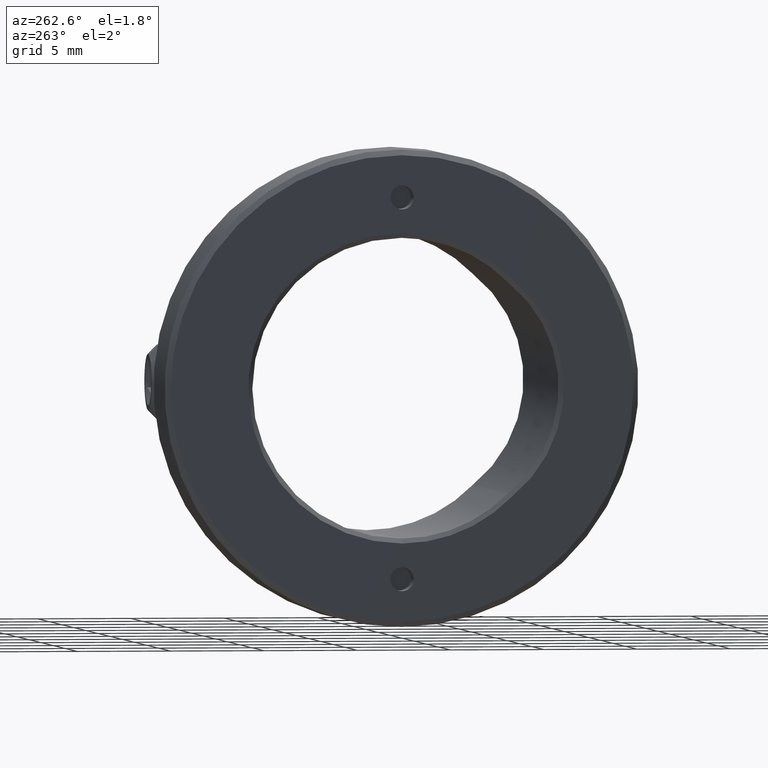
[diagram: clean part render]
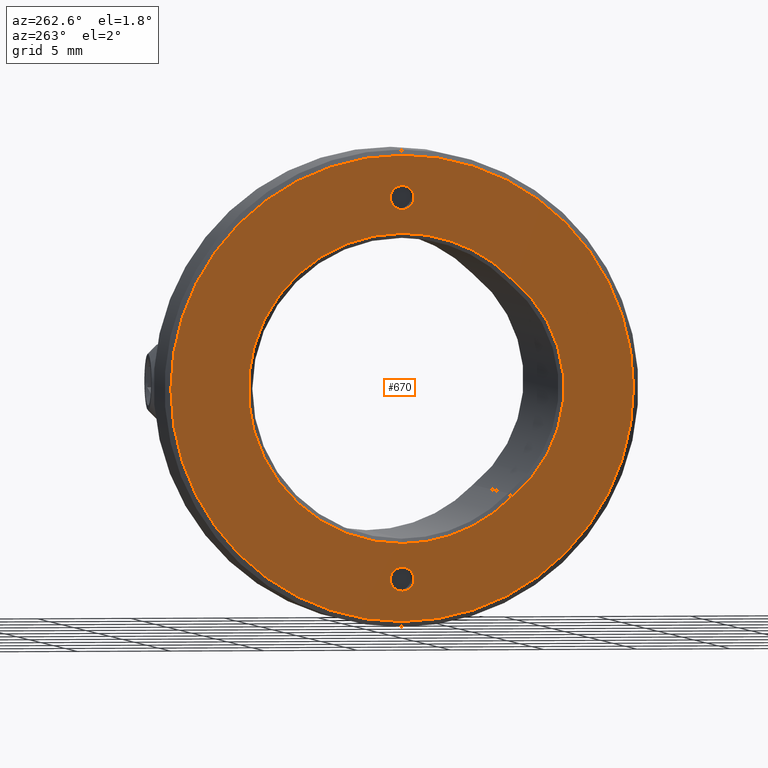
[diagram: same view with one face highlighted and labeled with its STEP entity id]
A machine part, auxiliary view. The second image highlights one B-rep face of the part: STEP entity #670.
In plain terms, the highlighted planar face has unit normal (1, 0, 0).
Its self-contained STEP definition (entity closure, byte-faithful):
#46 = EDGE_CURVE ( 'NONE', #3150, #1110, #4179, .T. ) ;
#50 = CIRCLE ( 'NONE', #2549, 12.40000000000000213 ) ;
#100 = CARTESIAN_POINT ( 'NONE',  ( -0.000000000000000000, -1.243016501134563686E-15, -10.15000000000000036 ) ) ;
#111 = VERTEX_POINT ( 'NONE', #472 ) ;
#135 = ORIENTED_EDGE ( 'NONE', *, *, #826, .F. ) ;
#167 = PLANE ( 'NONE',  #515 ) ;
#190 = DIRECTION ( 'NONE',  ( 0.000000000000000000, 0.000000000000000000, -1.000000000000000000 ) ) ;
#359 = CIRCLE ( 'NONE', #745, 0.6350000000000001199 ) ;
#394 = ORIENTED_EDGE ( 'NONE', *, *, #1951, .T. ) ;
#439 = CIRCLE ( 'NONE', #3182, 0.6350000000000001199 ) ;
#472 = CARTESIAN_POINT ( 'NONE',  ( 0.000000000000000000, -5.872204724409455956, -5.794800399895002840 ) ) ;
#477 = ORIENTED_EDGE ( 'NONE', *, *, #2613, .T. ) ;
#487 = CARTESIAN_POINT ( 'NONE',  ( 0.000000000000000000, -1.243016501134563686E-15, 10.15000000000000036 ) ) ;
#504 = DIRECTION ( 'NONE',  ( -1.000000000000000000, 0.000000000000000000, 0.000000000000000000 ) ) ;
#512 = DIRECTION ( 'NONE',  ( 0.000000000000000000, 0.000000000000000000, -1.000000000000000000 ) ) ;
#514 = DIRECTION ( 'NONE',  ( 1.000000000000000000, 0.000000000000000000, 0.000000000000000000 ) ) ;
#515 = AXIS2_PLACEMENT_3D ( 'NONE', #1690, #1252, #190 ) ;
#518 = CIRCLE ( 'NONE', #3251, 0.6350000000000001199 ) ;
#543 = DIRECTION ( 'NONE',  ( 0.000000000000000000, 0.000000000000000000, -1.000000000000000000 ) ) ;
#662 = CIRCLE ( 'NONE', #1282, 8.250000000000000000 ) ;
#670 = ADVANCED_FACE ( 'NONE', ( #1299, #802, #1987, #2285 ), #167, .F. ) ;
#734 = DIRECTION ( 'NONE',  ( 1.000000000000000000, 0.000000000000000000, 0.000000000000000000 ) ) ;
#736 = ORIENTED_EDGE ( 'NONE', *, *, #2443, .F. ) ;
#745 = AXIS2_PLACEMENT_3D ( 'NONE', #4063, #3630, #4384 ) ;
#757 = VERTEX_POINT ( 'NONE', #4653 ) ;
#780 = CARTESIAN_POINT ( 'NONE',  ( 0.000000000000000000, 0.000000000000000000, -12.40000000000000213 ) ) ;
#802 = FACE_BOUND ( 'NONE', #1149, .T. ) ;
#826 = EDGE_CURVE ( 'NONE', #2100, #3494, #1204, .T. ) ;
#961 = EDGE_LOOP ( 'NONE', ( #2169, #394 ) ) ;
#1013 = ORIENTED_EDGE ( 'NONE', *, *, #4169, .F. ) ;
#1110 = VERTEX_POINT ( 'NONE', #1904 ) ;
#1149 = EDGE_LOOP ( 'NONE', ( #1013, #2240 ) ) ;
#1204 = CIRCLE ( 'NONE', #3944, 0.6350000000000001199 ) ;
#1226 = DIRECTION ( 'NONE',  ( 0.000000000000000000, 0.000000000000000000, 1.000000000000000000 ) ) ;
#1243 = EDGE_LOOP ( 'NONE', ( #477, #1792, #1705, #2501 ) ) ;
#1252 = DIRECTION ( 'NONE',  ( 1.000000000000000000, 0.000000000000000000, 0.000000000000000000 ) ) ;
#1265 = CARTESIAN_POINT ( 'NONE',  ( 0.000000000000000000, -5.872204724409448851, 5.794800399895009058 ) ) ;
#1282 = AXIS2_PLACEMENT_3D ( 'NONE', #3874, #2378, #1578 ) ;
#1299 = FACE_BOUND ( 'NONE', #3088, .T. ) ;
#1344 = CARTESIAN_POINT ( 'NONE',  ( 0.000000000000000000, -1.270000000000000018, 1.555301434917138581E-16 ) ) ;
#1423 = CARTESIAN_POINT ( 'NONE',  ( 0.000000000000000000, -1.243016501134563686E-15, -9.515000000000000568 ) ) ;
#1446 = DIRECTION ( 'NONE',  ( 0.000000000000000000, 0.000000000000000000, -1.000000000000000000 ) ) ;
#1495 = EDGE_CURVE ( 'NONE', #4318, #3046, #662, .T. ) ;
#1550 = CARTESIAN_POINT ( 'NONE',  ( 0.000000000000000000, 0.000000000000000000, 0.000000000000000000 ) ) ;
#1578 = DIRECTION ( 'NONE',  ( 0.000000000000000000, 0.000000000000000000, -1.000000000000000000 ) ) ;
#1648 = EDGE_CURVE ( 'NONE', #757, #3699, #439, .T. ) ;
#1690 = CARTESIAN_POINT ( 'NONE',  ( 0.000000000000000000, 0.000000000000000000, 0.000000000000000000 ) ) ;
#1705 = ORIENTED_EDGE ( 'NONE', *, *, #4024, .T. ) ;
#1792 = ORIENTED_EDGE ( 'NONE', *, *, #1495, .T. ) ;
#1877 = CARTESIAN_POINT ( 'NONE',  ( 0.000000000000000000, -1.243016501134563686E-15, 10.78500000000000192 ) ) ;
#1904 = CARTESIAN_POINT ( 'NONE',  ( 0.000000000000000000, 1.536931732929928397E-15, 12.40000000000000213 ) ) ;
#1907 = CIRCLE ( 'NONE', #3101, 7.400000000000000355 ) ;
#1951 = EDGE_CURVE ( 'NONE', #1110, #3150, #50, .T. ) ;
#1987 = FACE_BOUND ( 'NONE', #1243, .T. ) ;
#2100 = VERTEX_POINT ( 'NONE', #3842 ) ;
#2169 = ORIENTED_EDGE ( 'NONE', *, *, #46, .T. ) ;
#2214 = CIRCLE ( 'NONE', #4098, 8.250000000000000000 ) ;
#2240 = ORIENTED_EDGE ( 'NONE', *, *, #1648, .F. ) ;
#2285 = FACE_OUTER_BOUND ( 'NONE', #961, .T. ) ;
#2378 = DIRECTION ( 'NONE',  ( 1.000000000000000000, 0.000000000000000000, 0.000000000000000000 ) ) ;
#2416 = DIRECTION ( 'NONE',  ( -1.000000000000000000, 0.000000000000000000, 0.000000000000000000 ) ) ;
#2443 = EDGE_CURVE ( 'NONE', #3494, #2100, #359, .T. ) ;
#2491 = DIRECTION ( 'NONE',  ( 0.000000000000000000, 0.000000000000000000, -1.000000000000000000 ) ) ;
#2501 = ORIENTED_EDGE ( 'NONE', *, *, #4620, .T. ) ;
#2549 = AXIS2_PLACEMENT_3D ( 'NONE', #3327, #4802, #1446 ) ;
#2569 = CARTESIAN_POINT ( 'NONE',  ( 0.000000000000000000, 0.000000000000000000, 8.250000000000000000 ) ) ;
#2613 = EDGE_CURVE ( 'NONE', #111, #4318, #2947, .T. ) ;
#2695 = DIRECTION ( 'NONE',  ( -1.000000000000000000, -0.000000000000000000, -0.000000000000000000 ) ) ;
#2770 = CARTESIAN_POINT ( 'NONE',  ( 0.000000000000000000, 0.000000000000000000, 0.000000000000000000 ) ) ;
#2947 = CIRCLE ( 'NONE', #3261, 8.250000000000000000 ) ;
#3046 = VERTEX_POINT ( 'NONE', #2569 ) ;
#3088 = EDGE_LOOP ( 'NONE', ( #736, #135 ) ) ;
#3101 = AXIS2_PLACEMENT_3D ( 'NONE', #1344, #3250, #2491 ) ;
#3134 = CARTESIAN_POINT ( 'NONE',  ( 0.000000000000000000, 0.000000000000000000, 0.000000000000000000 ) ) ;
#3150 = VERTEX_POINT ( 'NONE', #780 ) ;
#3182 = AXIS2_PLACEMENT_3D ( 'NONE', #3829, #504, #1226 ) ;
#3247 = AXIS2_PLACEMENT_3D ( 'NONE', #2770, #2695, #4237 ) ;
#3250 = DIRECTION ( 'NONE',  ( 1.000000000000000000, 0.000000000000000000, 0.000000000000000000 ) ) ;
#3251 = AXIS2_PLACEMENT_3D ( 'NONE', #100, #4591, #4152 ) ;
#3261 = AXIS2_PLACEMENT_3D ( 'NONE', #1550, #734, #4523 ) ;
#3327 = CARTESIAN_POINT ( 'NONE',  ( 0.000000000000000000, 0.000000000000000000, 0.000000000000000000 ) ) ;
#3427 = CARTESIAN_POINT ( 'NONE',  ( 0.000000000000000000, 1.010333609296566353E-15, -8.250000000000000000 ) ) ;
#3494 = VERTEX_POINT ( 'NONE', #1877 ) ;
#3630 = DIRECTION ( 'NONE',  ( -1.000000000000000000, 0.000000000000000000, 0.000000000000000000 ) ) ;
#3653 = VERTEX_POINT ( 'NONE', #1265 ) ;
#3699 = VERTEX_POINT ( 'NONE', #1423 ) ;
#3829 = CARTESIAN_POINT ( 'NONE',  ( -0.000000000000000000, -1.243016501134563686E-15, -10.15000000000000036 ) ) ;
#3842 = CARTESIAN_POINT ( 'NONE',  ( 0.000000000000000000, -1.165251429388706647E-15, 9.515000000000000568 ) ) ;
#3874 = CARTESIAN_POINT ( 'NONE',  ( 0.000000000000000000, 0.000000000000000000, 0.000000000000000000 ) ) ;
#3944 = AXIS2_PLACEMENT_3D ( 'NONE', #487, #2416, #512 ) ;
#4024 = EDGE_CURVE ( 'NONE', #3046, #3653, #2214, .T. ) ;
#4063 = CARTESIAN_POINT ( 'NONE',  ( 0.000000000000000000, -1.243016501134563686E-15, 10.15000000000000036 ) ) ;
#4098 = AXIS2_PLACEMENT_3D ( 'NONE', #3134, #514, #543 ) ;
#4152 = DIRECTION ( 'NONE',  ( 0.000000000000000000, 0.000000000000000000, 1.000000000000000000 ) ) ;
#4169 = EDGE_CURVE ( 'NONE', #3699, #757, #518, .T. ) ;
#4179 = CIRCLE ( 'NONE', #3247, 12.40000000000000213 ) ;
#4237 = DIRECTION ( 'NONE',  ( 0.000000000000000000, 0.000000000000000000, -1.000000000000000000 ) ) ;
#4318 = VERTEX_POINT ( 'NONE', #3427 ) ;
#4384 = DIRECTION ( 'NONE',  ( 0.000000000000000000, 0.000000000000000000, -1.000000000000000000 ) ) ;
#4523 = DIRECTION ( 'NONE',  ( 0.000000000000000000, 0.000000000000000000, -1.000000000000000000 ) ) ;
#4591 = DIRECTION ( 'NONE',  ( -1.000000000000000000, 0.000000000000000000, 0.000000000000000000 ) ) ;
#4620 = EDGE_CURVE ( 'NONE', #3653, #111, #1907, .T. ) ;
#4653 = CARTESIAN_POINT ( 'NONE',  ( 0.000000000000000000, -1.165251429388706647E-15, -10.78500000000000192 ) ) ;
#4802 = DIRECTION ( 'NONE',  ( -1.000000000000000000, -0.000000000000000000, -0.000000000000000000 ) ) ;